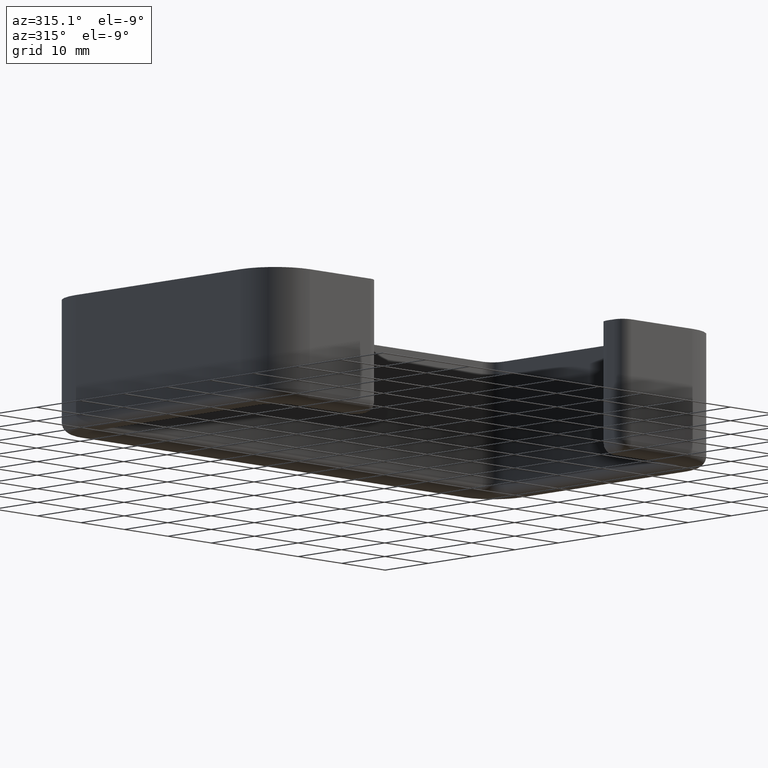
[diagram: clean part render]
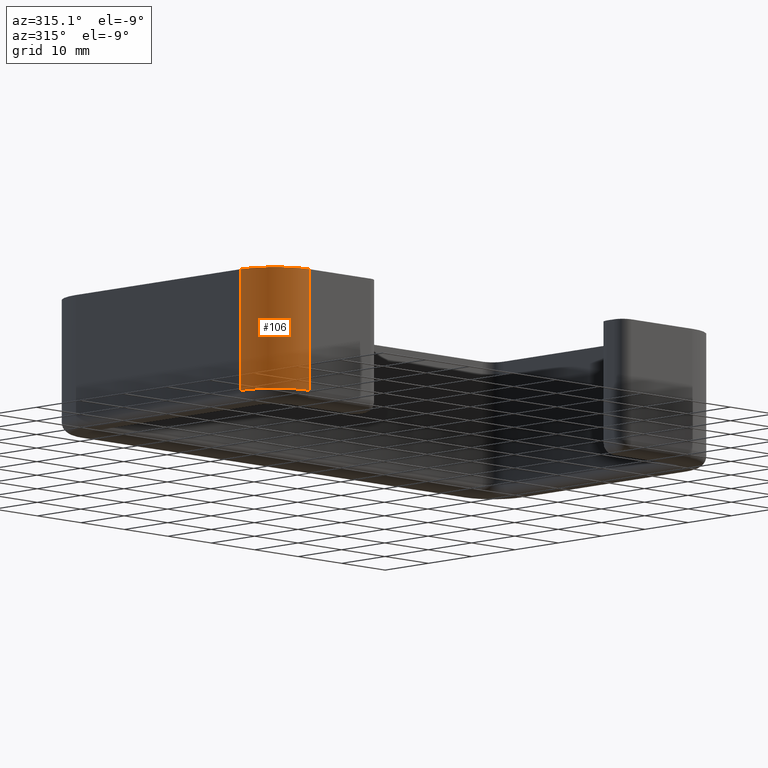
[diagram: same view with one face highlighted and labeled with its STEP entity id]
A machine part, auxiliary view. The second image highlights one B-rep face of the part: STEP entity #106.
In plain terms, the highlighted cylindrical surface (partial cylindrical patch) has radius 8 mm, axis along (0, 0, 1).
Its self-contained STEP definition (entity closure, byte-faithful):
#106 = ADVANCED_FACE( '', ( #210 ), #211, .T. );
#210 = FACE_OUTER_BOUND( '', #353, .T. );
#211 = CYLINDRICAL_SURFACE( '', #354, 8.00000000000000 );
#353 = EDGE_LOOP( '', ( #721, #722, #723, #724 ) );
#354 = AXIS2_PLACEMENT_3D( '', #725, #726, #727 );
#721 = ORIENTED_EDGE( '', *, *, #1137, .T. );
#722 = ORIENTED_EDGE( '', *, *, #1103, .T. );
#723 = ORIENTED_EDGE( '', *, *, #1138, .F. );
#724 = ORIENTED_EDGE( '', *, *, #1021, .T. );
#725 = CARTESIAN_POINT( '', ( -44.0000000000000, -19.0000000000000, -3.46944695195361E-015 ) );
#726 = DIRECTION( '', ( 0.000000000000000, 0.000000000000000, 1.00000000000000 ) );
#727 = DIRECTION( '', ( 1.00000000000000, 0.000000000000000, 0.000000000000000 ) );
#1021 = EDGE_CURVE( '', #1175, #1219, #1221, .T. );
#1103 = EDGE_CURVE( '', #1370, #1365, #1372, .F. );
#1137 = EDGE_CURVE( '', #1219, #1370, #1421, .T. );
#1138 = EDGE_CURVE( '', #1175, #1365, #1422, .T. );
#1175 = VERTEX_POINT( '', #1459 );
#1219 = VERTEX_POINT( '', #1514 );
#1221 = CIRCLE( '', #1517, 8.00000000000001 );
#1365 = VERTEX_POINT( '', #1706 );
#1370 = VERTEX_POINT( '', #1712 );
#1372 = CIRCLE( '', #1714, 8.00000000000001 );
#1421 = LINE( '', #1789, #1790 );
#1422 = LINE( '', #1791, #1792 );
#1459 = CARTESIAN_POINT( '', ( -44.0000000000000, -27.0000000000000, -3.46944695195361E-015 ) );
#1514 = CARTESIAN_POINT( '', ( -52.0000000000000, -19.0000000000000, -3.46944695195361E-015 ) );
#1517 = AXIS2_PLACEMENT_3D( '', #1891, #1892, #1893 );
#1706 = CARTESIAN_POINT( '', ( -44.0000000000000, -27.0000000000000, -20.0000000000000 ) );
#1712 = CARTESIAN_POINT( '', ( -52.0000000000000, -19.0000000000000, -20.0000000000000 ) );
#1714 = AXIS2_PLACEMENT_3D( '', #2045, #2046, #2047 );
#1789 = CARTESIAN_POINT( '', ( -52.0000000000000, -19.0000000000000, -3.46944695195361E-015 ) );
#1790 = VECTOR( '', #2095, 1000.00000000000 );
#1791 = CARTESIAN_POINT( '', ( -44.0000000000000, -27.0000000000000, -3.46944695195361E-015 ) );
#1792 = VECTOR( '', #2096, 1000.00000000000 );
#1891 = CARTESIAN_POINT( '', ( -44.0000000000000, -19.0000000000000, -3.46944695195361E-015 ) );
#1892 = DIRECTION( '', ( 0.000000000000000, 0.000000000000000, -1.00000000000000 ) );
#1893 = DIRECTION( '', ( -0.707106781186547, -0.707106781186548, 0.000000000000000 ) );
#2045 = CARTESIAN_POINT( '', ( -44.0000000000000, -19.0000000000000, -20.0000000000000 ) );
#2046 = DIRECTION( '', ( 0.000000000000000, 0.000000000000000, -1.00000000000000 ) );
#2047 = DIRECTION( '', ( -1.00000000000000, 0.000000000000000, 0.000000000000000 ) );
#2095 = DIRECTION( '', ( 0.000000000000000, 0.000000000000000, -1.00000000000000 ) );
#2096 = DIRECTION( '', ( 0.000000000000000, 0.000000000000000, -1.00000000000000 ) );